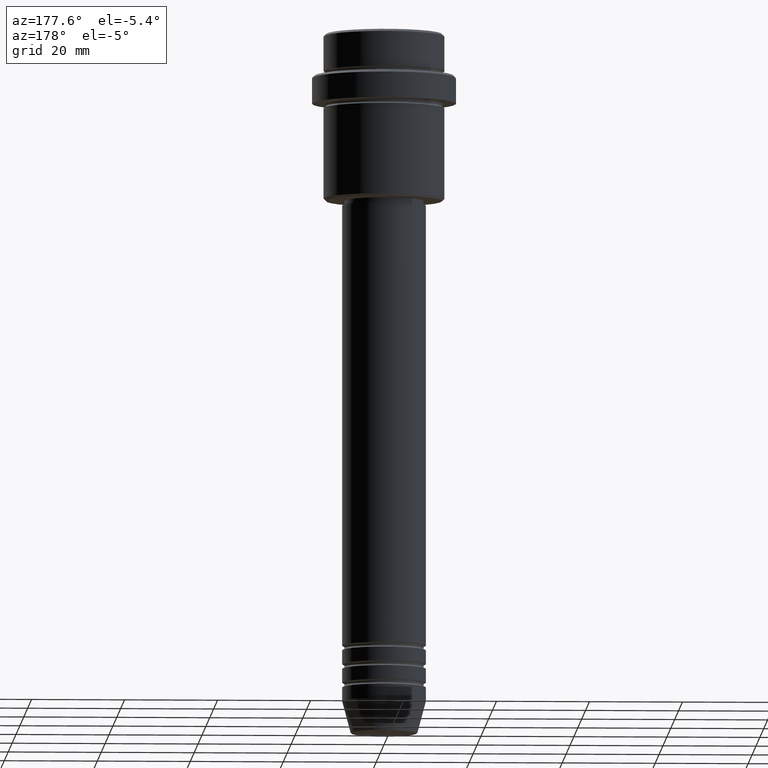
[diagram: clean part render]
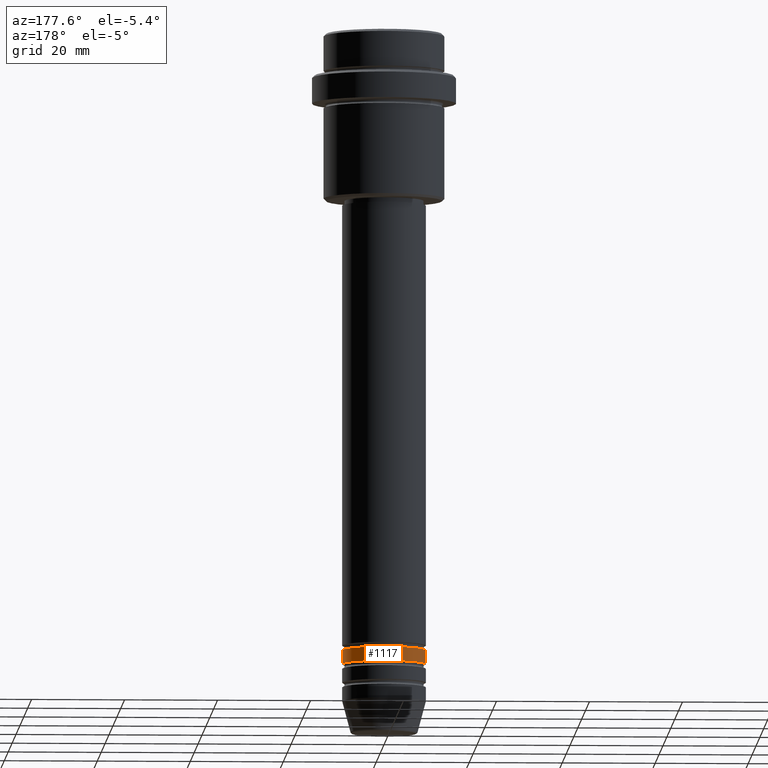
[diagram: same view with one face highlighted and labeled with its STEP entity id]
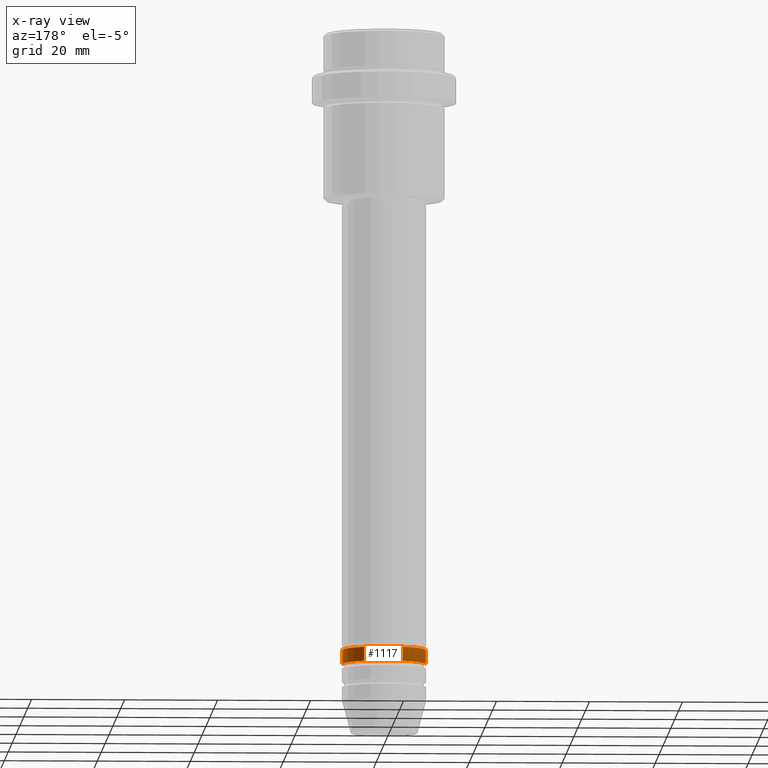
[diagram: x-ray of the same camera — body ghosted, the highlighted face saturated]
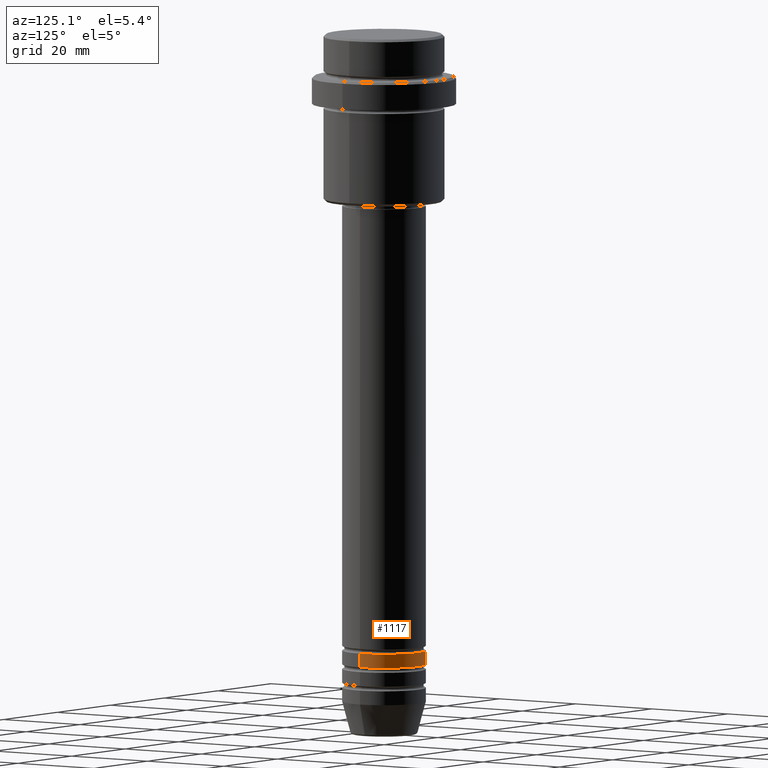
[diagram: same view with one face highlighted and labeled with its STEP entity id]
A machine part, auxiliary view. The second image highlights one B-rep face of the part: STEP entity #1117.
The next image is the same camera in x-ray: the body ghosted, the highlighted face saturated — about 0% of this face is hidden behind the body in this view.
A second angle (auxiliary view) of the same face is appended — the face is thin or edge-on in the first view.
In plain terms, the highlighted cylindrical surface (partial cylindrical patch) has radius 9 mm, axis along (-0, -0, 1).
Its self-contained STEP definition (entity closure, byte-faithful):
#41 = EDGE_LOOP ( 'NONE', ( #863, #399, #740, #499 ) ) ;
#53 = CARTESIAN_POINT ( 'NONE',  ( 0.000000000000000000, 0.000000000000000000, -132.9999999999998579 ) ) ;
#63 = DIRECTION ( 'NONE',  ( -0.000000000000000000, -0.000000000000000000, 1.000000000000000000 ) ) ;
#78 = CYLINDRICAL_SURFACE ( 'NONE', #1384, 9.000000000000000000 ) ;
#88 = LINE ( 'NONE', #490, #811 ) ;
#198 = DIRECTION ( 'NONE',  ( -0.000000000000000000, -0.000000000000000000, 1.000000000000000000 ) ) ;
#255 = VECTOR ( 'NONE', #313, 1000.000000000000000 ) ;
#284 = DIRECTION ( 'NONE',  ( -0.000000000000000000, -0.000000000000000000, 1.000000000000000000 ) ) ;
#299 = CARTESIAN_POINT ( 'NONE',  ( 0.000000000000000000, 0.000000000000000000, -135.9999999999998579 ) ) ;
#313 = DIRECTION ( 'NONE',  ( -0.000000000000000000, -0.000000000000000000, 1.000000000000000000 ) ) ;
#396 = VERTEX_POINT ( 'NONE', #622 ) ;
#399 = ORIENTED_EDGE ( 'NONE', *, *, #446, .T. ) ;
#421 = CARTESIAN_POINT ( 'NONE',  ( -9.000000000000000000, 1.102182119232617714E-15, 0.000000000000000000 ) ) ;
#446 = EDGE_CURVE ( 'NONE', #1288, #396, #964, .T. ) ;
#483 = DIRECTION ( 'NONE',  ( 1.000000000000000000, 0.000000000000000000, 0.000000000000000000 ) ) ;
#490 = CARTESIAN_POINT ( 'NONE',  ( 9.000000000000000000, 0.000000000000000000, 0.000000000000000000 ) ) ;
#492 = DIRECTION ( 'NONE',  ( -0.000000000000000000, -0.000000000000000000, 1.000000000000000000 ) ) ;
#499 = ORIENTED_EDGE ( 'NONE', *, *, #1148, .F. ) ;
#521 = CARTESIAN_POINT ( 'NONE',  ( -9.000000000000000000, 1.102182119232617714E-15, -135.9999999999998579 ) ) ;
#589 = CARTESIAN_POINT ( 'NONE',  ( 9.000000000000000000, 0.000000000000000000, -135.9999999999998579 ) ) ;
#622 = CARTESIAN_POINT ( 'NONE',  ( -9.000000000000000000, 1.102182119232617714E-15, -132.9999999999998579 ) ) ;
#670 = VERTEX_POINT ( 'NONE', #589 ) ;
#687 = AXIS2_PLACEMENT_3D ( 'NONE', #53, #492, #483 ) ;
#720 = CARTESIAN_POINT ( 'NONE',  ( 0.000000000000000000, 0.000000000000000000, 0.000000000000000000 ) ) ;
#740 = ORIENTED_EDGE ( 'NONE', *, *, #756, .F. ) ;
#756 = EDGE_CURVE ( 'NONE', #1263, #396, #1294, .T. ) ;
#811 = VECTOR ( 'NONE', #63, 1000.000000000000000 ) ;
#834 = EDGE_CURVE ( 'NONE', #670, #1288, #1032, .T. ) ;
#850 = FACE_OUTER_BOUND ( 'NONE', #41, .T. ) ;
#863 = ORIENTED_EDGE ( 'NONE', *, *, #834, .T. ) ;
#964 = LINE ( 'NONE', #421, #255 ) ;
#1032 = CIRCLE ( 'NONE', #1153, 9.000000000000000000 ) ;
#1117 = ADVANCED_FACE ( 'NONE', ( #850 ), #78, .T. ) ;
#1148 = EDGE_CURVE ( 'NONE', #670, #1263, #88, .T. ) ;
#1153 = AXIS2_PLACEMENT_3D ( 'NONE', #299, #198, #1409 ) ;
#1162 = DIRECTION ( 'NONE',  ( 1.000000000000000000, 0.000000000000000000, 0.000000000000000000 ) ) ;
#1263 = VERTEX_POINT ( 'NONE', #1417 ) ;
#1288 = VERTEX_POINT ( 'NONE', #521 ) ;
#1294 = CIRCLE ( 'NONE', #687, 9.000000000000000000 ) ;
#1384 = AXIS2_PLACEMENT_3D ( 'NONE', #720, #284, #1162 ) ;
#1409 = DIRECTION ( 'NONE',  ( 1.000000000000000000, 0.000000000000000000, 0.000000000000000000 ) ) ;
#1417 = CARTESIAN_POINT ( 'NONE',  ( 9.000000000000000000, 0.000000000000000000, -132.9999999999998579 ) ) ;